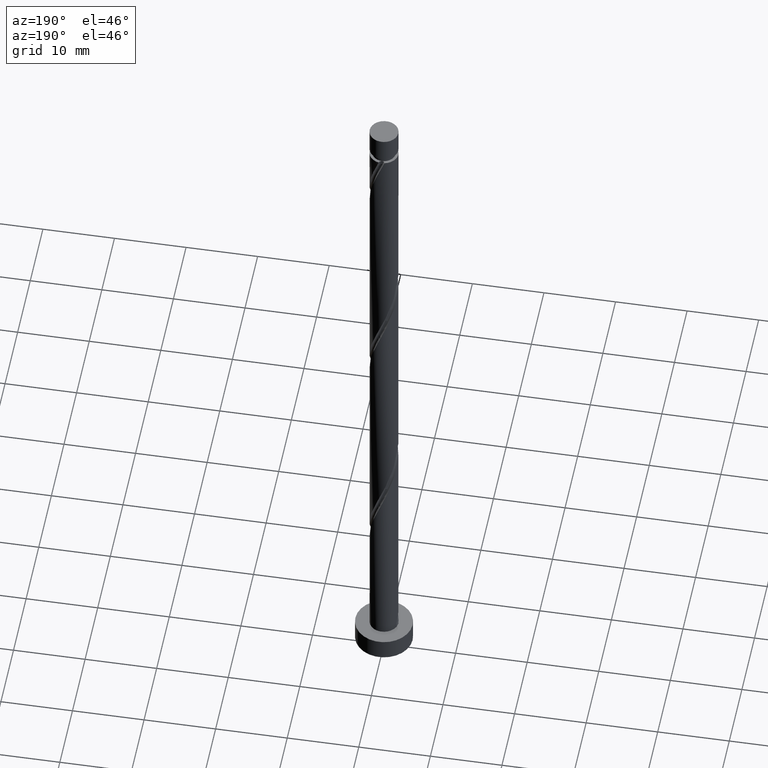
[diagram: clean part render]
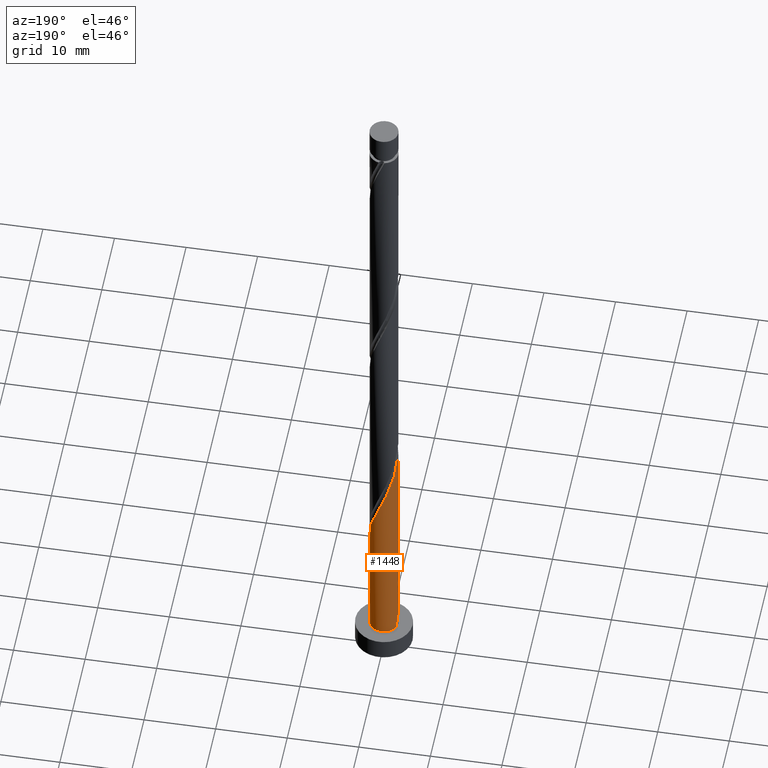
[diagram: same view with one face highlighted and labeled with its STEP entity id]
A machine part, auxiliary view. The second image highlights one B-rep face of the part: STEP entity #1448.
In plain terms, the highlighted cylindrical surface (edge-blend (fillet) strip) has radius 2 mm, axis along (-0, -0, -1).
Its self-contained STEP definition (entity closure, byte-faithful):
#5 = CARTESIAN_POINT ( 'NONE',  ( -1.996223298870952290, 0.1228517034671600255, 36.07002439664110227 ) ) ;
#10 = CARTESIAN_POINT ( 'NONE',  ( -1.521943481029064182, 1.324015695162691353, 32.59780217441888084 ) ) ;
#27 = LINE ( 'NONE', #2079, #1521 ) ;
#49 = CARTESIAN_POINT ( 'NONE',  ( -1.832356117975683096, 0.8015429226916570560, 3.000000000000005773 ) ) ;
#170 = CARTESIAN_POINT ( 'NONE',  ( -0.3979949748426477307, 1.960000000000003073, 29.12557995219665585 ) ) ;
#176 = DIRECTION ( 'NONE',  ( 1.000000000000000000, 0.000000000000000000, 0.000000000000000000 ) ) ;
#302 = DIRECTION ( 'NONE',  ( -0.000000000000000000, -0.000000000000000000, -1.000000000000000000 ) ) ;
#305 = CARTESIAN_POINT ( 'NONE',  ( -1.917649004904713461, 0.6065602976072885788, 3.564280735869632899 ) ) ;
#316 = CARTESIAN_POINT ( 'NONE',  ( -0.6560338701139443174, 1.907602967534735461, 29.82002439664109872 ) ) ;
#331 = CARTESIAN_POINT ( 'NONE',  ( 1.790205940182201250, 0.8917189533347223973, 22.18113550775220943 ) ) ;
#334 = EDGE_CURVE ( 'NONE', #1618, #2110, #1946, .T. ) ;
#394 = EDGE_CURVE ( 'NONE', #1075, #1272, #27, .T. ) ;
#408 = AXIS2_PLACEMENT_3D ( 'NONE', #1027, #528, #176 ) ;
#436 = ORIENTED_EDGE ( 'NONE', *, *, #334, .T. ) ;
#460 = CYLINDRICAL_SURFACE ( 'NONE', #1061, 2.000000000000000000 ) ;
#474 = CARTESIAN_POINT ( 'NONE',  ( 1.498412303996179418, 1.324673758792282330, 23.57002439664109517 ) ) ;
#511 = CARTESIAN_POINT ( 'NONE',  ( 0.3856594865056725552, 1.980049565276634560, 27.04224661886332370 ) ) ;
#528 = DIRECTION ( 'NONE',  ( 0.000000000000000000, 0.000000000000000000, 1.000000000000000000 ) ) ;
#642 = CARTESIAN_POINT ( 'NONE',  ( -1.959999999999999520, 0.3979949748426478973, 4.125579952196645195 ) ) ;
#653 = CARTESIAN_POINT ( 'NONE',  ( -1.980049565276635226, 0.3856594865056712229, 35.37557995219665230 ) ) ;
#678 = CARTESIAN_POINT ( 'NONE',  ( -2.000000000000003109, 4.882410620842015415E-15, 36.39534663031990647 ) ) ;
#688 = CARTESIAN_POINT ( 'NONE',  ( 2.000000000000002665, -5.532900244139497697E-16, 19.72867996365324927 ) ) ;
#705 = CARTESIAN_POINT ( 'NONE',  ( 2.000000000000000000, 2.449293598294705921E-16, 100.0000000000000000 ) ) ;
#747 = CARTESIAN_POINT ( 'NONE',  ( -2.000000000000003109, 4.882410620842015415E-15, 36.39534663031990647 ) ) ;
#792 = CARTESIAN_POINT ( 'NONE',  ( -2.000000000000000000, 1.644916288798239822E-15, 5.189146607406710743 ) ) ;
#887 = EDGE_CURVE ( 'NONE', #2131, #1618, #1869, .T. ) ;
#962 = ORIENTED_EDGE ( 'NONE', *, *, #394, .F. ) ;
#979 =( BOUNDED_CURVE ( )  B_SPLINE_CURVE ( 2, ( #792, #1481, #642, #305, #49 ),
 .UNSPECIFIED., .F., .T. ) 
 B_SPLINE_CURVE_WITH_KNOTS ( ( 3, 2, 3 ),
 ( 0.9295317669814463502, 0.9375000000000000000, 0.9459333211624765259 ),
 .UNSPECIFIED. ) 
 CURVE ( )  GEOMETRIC_REPRESENTATION_ITEM ( )  RATIONAL_B_SPLINE_CURVE ( ( 0.9062941362546277357, 0.9031415850403321510, 0.9090909090909075063, 0.9027943361491621577, 0.9066931594008308393 ) ) 
 REPRESENTATION_ITEM ( '' )  );
#1009 = CARTESIAN_POINT ( 'NONE',  ( 1.104504345536230003, 1.667354236715040683, 24.95891328552999155 ) ) ;
#1027 = CARTESIAN_POINT ( 'NONE',  ( 0.000000000000000000, 0.000000000000000000, 3.000000000000000000 ) ) ;
#1061 = AXIS2_PLACEMENT_3D ( 'NONE', #1152, #302, #1627 ) ;
#1075 = VERTEX_POINT ( 'NONE', #747 ) ;
#1152 = CARTESIAN_POINT ( 'NONE',  ( 0.000000000000000000, 0.000000000000000000, 100.0000000000000000 ) ) ;
#1157 = ORIENTED_EDGE ( 'NONE', *, *, #887, .T. ) ;
#1163 = CARTESIAN_POINT ( 'NONE',  ( -1.812764992401018516, 0.8849929959097683208, 33.98669106330775946 ) ) ;
#1166 = EDGE_LOOP ( 'NONE', ( #1424, #1157, #436, #1262, #962 ) ) ;
#1194 = CARTESIAN_POINT ( 'NONE',  ( -1.127404036555502476, 1.672808912829666150, 31.20891328552999155 ) ) ;
#1202 = CARTESIAN_POINT ( 'NONE',  ( -1.324673758792282996, 1.498412303996178307, 31.90335772997442731 ) ) ;
#1262 = ORIENTED_EDGE ( 'NONE', *, *, #1495, .F. ) ;
#1272 = VERTEX_POINT ( 'NONE', #1967 ) ;
#1289 = FACE_OUTER_BOUND ( 'NONE', #1166, .T. ) ;
#1354 = CARTESIAN_POINT ( 'NONE',  ( -0.1399560795713498951, 2.012397032465270907, 28.43113550775222009 ) ) ;
#1362 = DIRECTION ( 'NONE',  ( -0.000000000000000000, -0.000000000000000000, -1.000000000000000000 ) ) ;
#1364 = CARTESIAN_POINT ( 'NONE',  ( 0.1228517034671612468, 1.996223298870952290, 27.73669106330776302 ) ) ;
#1424 = ORIENTED_EDGE ( 'NONE', *, *, #1573, .F. ) ;
#1448 = ADVANCED_FACE ( 'NONE', ( #1289 ), #460, .T. ) ;
#1481 = CARTESIAN_POINT ( 'NONE',  ( -2.000000000000000000, 0.2010075630518434464, 4.655720238217438300 ) ) ;
#1495 = EDGE_CURVE ( 'NONE', #1272, #2110, #979, .T. ) ;
#1511 = CARTESIAN_POINT ( 'NONE',  ( 1.324015695162692907, 1.521943481029063516, 24.26446884108554158 ) ) ;
#1521 = VECTOR ( 'NONE', #2054, 1000.000000000000000 ) ;
#1524 = CARTESIAN_POINT ( 'NONE',  ( 1.960000000000003073, 0.3979949748426477862, 20.79224661886332015 ) ) ;
#1535 = CARTESIAN_POINT ( 'NONE',  ( -1.667354236715041571, 1.104504345536229559, 33.29224661886331660 ) ) ;
#1573 = EDGE_CURVE ( 'NONE', #2131, #1075, #1735, .T. ) ;
#1618 = VERTEX_POINT ( 'NONE', #1872 ) ;
#1627 = DIRECTION ( 'NONE',  ( -1.000000000000000000, 0.000000000000000000, 0.000000000000000000 ) ) ;
#1702 = CARTESIAN_POINT ( 'NONE',  ( 1.672808912829666816, 1.127404036555501810, 22.87557995219665230 ) ) ;
#1735 =( BOUNDED_CURVE ( )  B_SPLINE_CURVE ( 2, ( #688, #1862, #1524, #2019, #331, #1702, #474, #1511, #1009, #2159, #2176, #511, #1364, #1354, #170, #316, #2000, #1194, #1202, #10, #1535, #1163, #1884, #653, #5, #1845, #678 ),
 .UNSPECIFIED., .F., .T. ) 
 B_SPLINE_CURVE_WITH_KNOTS ( ( 3, 2, 2, 2, 2, 2, 2, 2, 2, 2, 2, 2, 2, 3 ),
 ( 0.1795317669814463502, 0.1875000000000000000, 0.1979166666666666297, 0.2083333333333333703, 0.2187500000000000000, 0.2291666666666666297, 0.2395833333333333703, 0.2500000000000000000, 0.2604166666666666297, 0.2708333333333333703, 0.2812500000000000000, 0.2916666666666666297, 0.3020833333333333703, 0.3045317669814462946 ),
 .UNSPECIFIED. ) 
 CURVE ( )  GEOMETRIC_REPRESENTATION_ITEM ( )  RATIONAL_B_SPLINE_CURVE ( ( 0.9062941362546337309, 0.9031415850403380352, 0.9090909090909135015, 0.9013135103398318693, 0.9090909090909135015, 0.9013135103398318693, 0.9090909090909135015, 0.9013135103398318693, 0.9090909090909135015, 0.9013135103398318693, 0.9090909090909135015, 0.9013135103398318693, 0.9090909090909135015, 0.9013135103398318693, 0.9090909090909135015, 0.9013135103398318693, 0.9090909090909135015, 0.9013135103398318693, 0.9090909090909135015, 0.9013135103398318693, 0.9090909090909135015, 0.9013135103398318693, 0.9090909090909135015, 0.9013135103398318693, 0.9090909090909135015, 0.9072628343904072246, 0.9062941362546337309 ) ) 
 REPRESENTATION_ITEM ( '' )  );
#1832 = CARTESIAN_POINT ( 'NONE',  ( 2.000000000000002665, -5.532900244139497697E-16, 19.72867996365324927 ) ) ;
#1845 = CARTESIAN_POINT ( 'NONE',  ( -2.000000000000002665, 0.06148390331534842046, 36.23218294229176450 ) ) ;
#1862 = CARTESIAN_POINT ( 'NONE',  ( 2.000000000000003553, 0.2010075630518415590, 20.26210633284252793 ) ) ;
#1869 = LINE ( 'NONE', #705, #1881 ) ;
#1872 = CARTESIAN_POINT ( 'NONE',  ( 2.000000000000000000, 2.449293598294705921E-16, 3.000000000000000000 ) ) ;
#1881 = VECTOR ( 'NONE', #1362, 1000.000000000000000 ) ;
#1884 = CARTESIAN_POINT ( 'NONE',  ( -1.896407278838826427, 0.6353262412077199661, 34.68113550775220233 ) ) ;
#1942 = CARTESIAN_POINT ( 'NONE',  ( -1.832356117975683096, 0.8015429226916571670, 3.000000000000005773 ) ) ;
#1946 = CIRCLE ( 'NONE', #408, 2.000000000000000000 ) ;
#1967 = CARTESIAN_POINT ( 'NONE',  ( -2.000000000000000000, 1.644916288798239822E-15, 5.189146607406710743 ) ) ;
#2000 = CARTESIAN_POINT ( 'NONE',  ( -0.8917189533347233965, 1.790205940182200361, 30.51446884108554514 ) ) ;
#2019 = CARTESIAN_POINT ( 'NONE',  ( 1.907602967534736571, 0.6560338701139438733, 21.48669106330776657 ) ) ;
#2054 = DIRECTION ( 'NONE',  ( -0.000000000000000000, -0.000000000000000000, -1.000000000000000000 ) ) ;
#2079 = CARTESIAN_POINT ( 'NONE',  ( -2.000000000000000000, 0.000000000000000000, 100.0000000000000000 ) ) ;
#2110 = VERTEX_POINT ( 'NONE', #1942 ) ;
#2131 = VERTEX_POINT ( 'NONE', #1832 ) ;
#2159 = CARTESIAN_POINT ( 'NONE',  ( 0.8849929959097692089, 1.812764992401018072, 25.65335772997443087 ) ) ;
#2176 = CARTESIAN_POINT ( 'NONE',  ( 0.6353262412077205212, 1.896407278838825761, 26.34780217441887729 ) ) ;